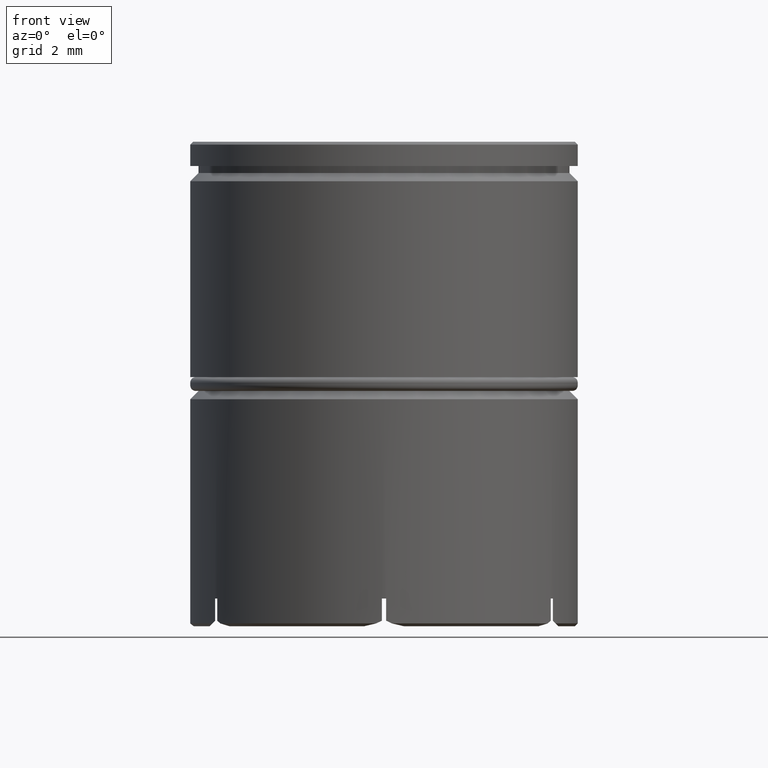
[diagram: clean part render]
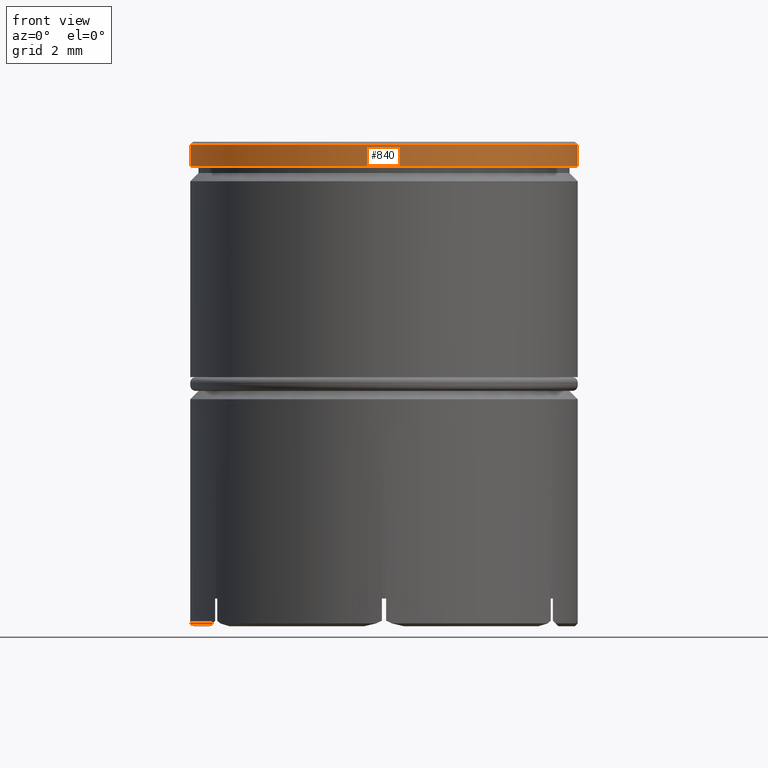
[diagram: same view with one face highlighted and labeled with its STEP entity id]
A machine part, front view. The second image highlights one B-rep face of the part: STEP entity #840.
In plain terms, the highlighted cylindrical surface (partial cylindrical patch) has radius 7 mm, axis along (-0, -0, 1).
Its self-contained STEP definition (entity closure, byte-faithful):
#9 = DIRECTION ( 'NONE',  ( 1.000000000000000000, 0.000000000000000000, 0.000000000000000000 ) ) ;
#68 = ORIENTED_EDGE ( 'NONE', *, *, #392, .F. ) ;
#87 = CARTESIAN_POINT ( 'NONE',  ( -7.000000000000000888, 8.572527594031474176E-16, -0.8749999999999998890 ) ) ;
#122 = ORIENTED_EDGE ( 'NONE', *, *, #1235, .T. ) ;
#157 = DIRECTION ( 'NONE',  ( 1.000000000000000000, 0.000000000000000000, 0.000000000000000000 ) ) ;
#181 = CARTESIAN_POINT ( 'NONE',  ( 0.000000000000000000, 0.000000000000000000, -0.1000000000000011297 ) ) ;
#287 = DIRECTION ( 'NONE',  ( -0.000000000000000000, -0.000000000000000000, 1.000000000000000000 ) ) ;
#324 = EDGE_LOOP ( 'NONE', ( #68, #122, #346, #809 ) ) ;
#329 = VECTOR ( 'NONE', #365, 1000.000000000000000 ) ;
#346 = ORIENTED_EDGE ( 'NONE', *, *, #858, .T. ) ;
#358 = CARTESIAN_POINT ( 'NONE',  ( -7.000000000000000888, 8.572527594031474176E-16, 0.000000000000000000 ) ) ;
#365 = DIRECTION ( 'NONE',  ( -0.000000000000000000, -0.000000000000000000, 1.000000000000000000 ) ) ;
#392 = EDGE_CURVE ( 'NONE', #1361, #721, #1500, .T. ) ;
#449 = AXIS2_PLACEMENT_3D ( 'NONE', #1440, #287, #1062 ) ;
#557 = CIRCLE ( 'NONE', #1615, 7.000000000000000888 ) ;
#558 = FACE_OUTER_BOUND ( 'NONE', #324, .T. ) ;
#570 = CYLINDRICAL_SURFACE ( 'NONE', #671, 7.000000000000000888 ) ;
#671 = AXIS2_PLACEMENT_3D ( 'NONE', #1064, #941, #9 ) ;
#721 = VERTEX_POINT ( 'NONE', #936 ) ;
#808 = DIRECTION ( 'NONE',  ( 0.000000000000000000, 0.000000000000000000, -1.000000000000000000 ) ) ;
#809 = ORIENTED_EDGE ( 'NONE', *, *, #1155, .T. ) ;
#840 = ADVANCED_FACE ( 'NONE', ( #558 ), #570, .T. ) ;
#858 = EDGE_CURVE ( 'NONE', #1298, #1612, #1088, .T. ) ;
#936 = CARTESIAN_POINT ( 'NONE',  ( -7.000000000000000888, 8.572527594031474176E-16, -0.1000000000000011297 ) ) ;
#941 = DIRECTION ( 'NONE',  ( -0.000000000000000000, -0.000000000000000000, 1.000000000000000000 ) ) ;
#985 = DIRECTION ( 'NONE',  ( -0.000000000000000000, -0.000000000000000000, 1.000000000000000000 ) ) ;
#1062 = DIRECTION ( 'NONE',  ( 1.000000000000000000, 0.000000000000000000, 0.000000000000000000 ) ) ;
#1064 = CARTESIAN_POINT ( 'NONE',  ( 0.000000000000000000, 0.000000000000000000, 0.000000000000000000 ) ) ;
#1088 = LINE ( 'NONE', #1360, #1213 ) ;
#1155 = EDGE_CURVE ( 'NONE', #1612, #721, #557, .T. ) ;
#1157 = CIRCLE ( 'NONE', #449, 7.000000000000000888 ) ;
#1213 = VECTOR ( 'NONE', #985, 1000.000000000000000 ) ;
#1235 = EDGE_CURVE ( 'NONE', #1361, #1298, #1157, .T. ) ;
#1298 = VERTEX_POINT ( 'NONE', #1607 ) ;
#1360 = CARTESIAN_POINT ( 'NONE',  ( 7.000000000000000888, 0.000000000000000000, 0.000000000000000000 ) ) ;
#1361 = VERTEX_POINT ( 'NONE', #87 ) ;
#1440 = CARTESIAN_POINT ( 'NONE',  ( 0.000000000000000000, 0.000000000000000000, -0.8749999999999998890 ) ) ;
#1500 = LINE ( 'NONE', #358, #329 ) ;
#1543 = CARTESIAN_POINT ( 'NONE',  ( 7.000000000000000888, 0.000000000000000000, -0.1000000000000011297 ) ) ;
#1607 = CARTESIAN_POINT ( 'NONE',  ( 7.000000000000000888, 0.000000000000000000, -0.8749999999999998890 ) ) ;
#1612 = VERTEX_POINT ( 'NONE', #1543 ) ;
#1615 = AXIS2_PLACEMENT_3D ( 'NONE', #181, #808, #157 ) ;